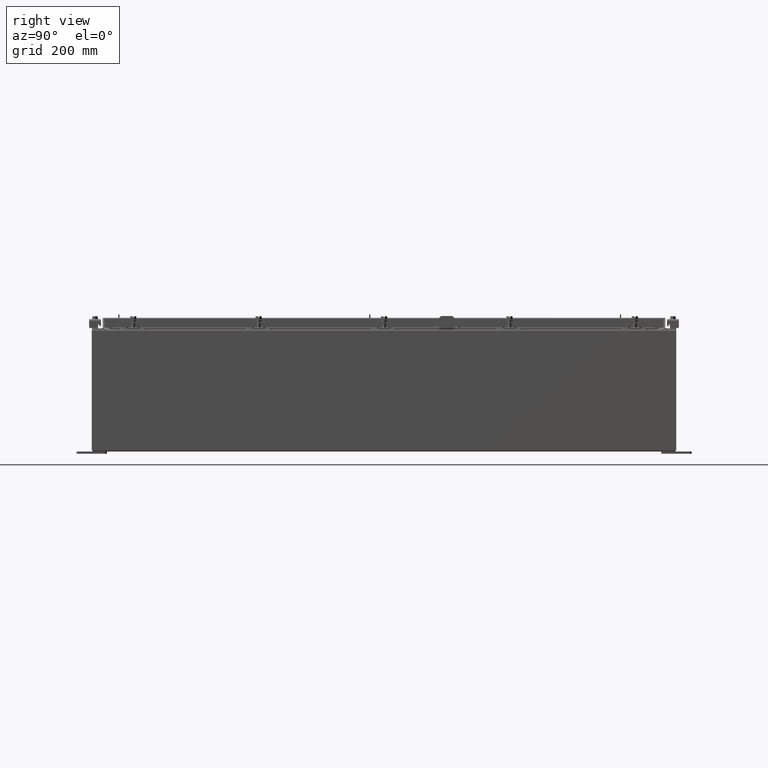
[diagram: clean part render]
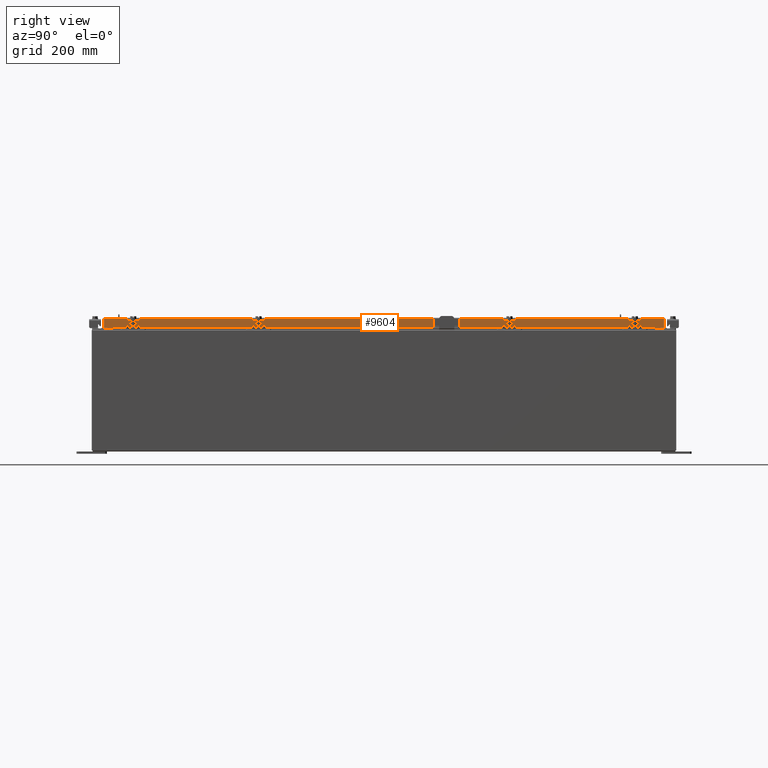
[diagram: same view with one face highlighted and labeled with its STEP entity id]
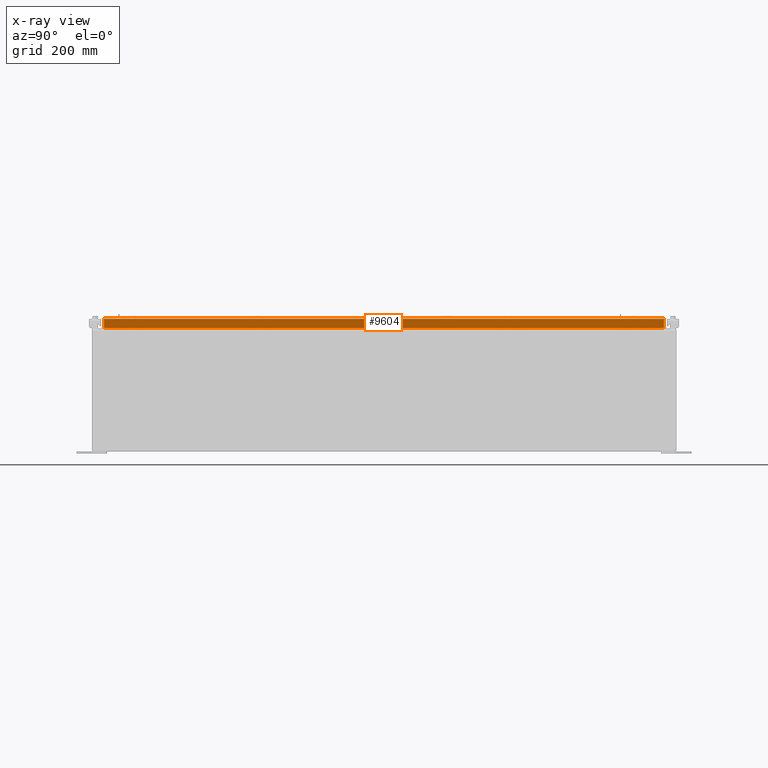
[diagram: x-ray of the same camera — body ghosted, the highlighted face saturated]
A machine part, right view. The second image highlights one B-rep face of the part: STEP entity #9604.
The next image is the same camera in x-ray: the body ghosted, the highlighted face saturated — about 0% of this face is hidden behind the body in this view.
In plain terms, the highlighted planar face has unit normal (1, 0, 0).
Its self-contained STEP definition (entity closure, byte-faithful):
#224 = ORIENTED_EDGE ( 'NONE', *, *, #17596, .F. ) ;
#343 = EDGE_CURVE ( 'NONE', #21445, #2630, #20686, .T. ) ;
#785 = CARTESIAN_POINT ( 'NONE',  ( 14.07799999999999900, 4.149702416982216500E-018, -0.08770000000000115200 ) ) ;
#1164 = CARTESIAN_POINT ( 'NONE',  ( 14.07799999999999900, 0.0000000000000000000, 3.994501956836086200E-014 ) ) ;
#2500 = VERTEX_POINT ( 'NONE', #5591 ) ;
#2630 = VERTEX_POINT ( 'NONE', #13372 ) ;
#2797 = ORIENTED_EDGE ( 'NONE', *, *, #343, .T. ) ;
#3774 = VECTOR ( 'NONE', #18931, 39.37007874015748100 ) ;
#4299 = DIRECTION ( 'NONE',  ( 0.0000000000000000000, -1.000000000000000000, 0.0000000000000000000 ) ) ;
#4976 = DIRECTION ( 'NONE',  ( 1.000000000000000000, 0.0000000000000000000, 2.818880942772360100E-015 ) ) ;
#5591 = CARTESIAN_POINT ( 'NONE',  ( 14.07799999999999900, -23.00515786437627200, -0.08770000000000224800 ) ) ;
#6147 = EDGE_CURVE ( 'NONE', #21445, #21310, #19562, .T. ) ;
#7078 = VECTOR ( 'NONE', #21745, 39.37007874015748100 ) ;
#7211 = DIRECTION ( 'NONE',  ( -2.818880942772360100E-015, -6.982962677686265900E-015, 1.000000000000000000 ) ) ;
#8622 = LINE ( 'NONE', #10353, #13063 ) ;
#8812 = ORIENTED_EDGE ( 'NONE', *, *, #16364, .F. ) ;
#9398 = CARTESIAN_POINT ( 'NONE',  ( 14.07799999999999900, -23.00515786437627200, -0.07469999999999978000 ) ) ;
#9604 = ADVANCED_FACE ( 'NONE', ( #15589 ), #20131, .T. ) ;
#9929 = VECTOR ( 'NONE', #7211, 39.37007874015748100 ) ;
#10353 = CARTESIAN_POINT ( 'NONE',  ( 14.07800000000000300, -23.09400000000000100, -0.8499999999999996400 ) ) ;
#10795 = ORIENTED_EDGE ( 'NONE', *, *, #19957, .F. ) ;
#11488 = VERTEX_POINT ( 'NONE', #18641 ) ;
#13063 = VECTOR ( 'NONE', #21790, 39.37007874015748100 ) ;
#13372 = CARTESIAN_POINT ( 'NONE',  ( 14.07799999999999900, 23.00515786437626200, -0.08770000000000115200 ) ) ;
#13526 = VECTOR ( 'NONE', #24593, 39.37007874015748100 ) ;
#13694 = ORIENTED_EDGE ( 'NONE', *, *, #6147, .F. ) ;
#13797 = EDGE_LOOP ( 'NONE', ( #8812, #10795, #224, #13694, #2797, #15445 ) ) ;
#13970 = EDGE_CURVE ( 'NONE', #2630, #2500, #22868, .T. ) ;
#14050 = CARTESIAN_POINT ( 'NONE',  ( 14.07799999999999100, 22.25515786437627200, -0.8500000000000020900 ) ) ;
#15445 = ORIENTED_EDGE ( 'NONE', *, *, #13970, .T. ) ;
#15589 = FACE_OUTER_BOUND ( 'NONE', #13797, .T. ) ;
#16163 = LINE ( 'NONE', #19537, #20654 ) ;
#16364 = EDGE_CURVE ( 'NONE', #11488, #2500, #24231, .T. ) ;
#17596 = EDGE_CURVE ( 'NONE', #21310, #18886, #16163, .T. ) ;
#17985 = AXIS2_PLACEMENT_3D ( 'NONE', #1164, #4976, #18295 ) ;
#18295 = DIRECTION ( 'NONE',  ( 2.818880942772360100E-015, 0.0000000000000000000, -1.000000000000000000 ) ) ;
#18545 = CARTESIAN_POINT ( 'NONE',  ( 14.07800000000000300, -23.09400000000000100, -0.8499999999999996400 ) ) ;
#18641 = CARTESIAN_POINT ( 'NONE',  ( 14.07800000000000300, -23.00515786437626900, -0.8499999999999996400 ) ) ;
#18886 = VERTEX_POINT ( 'NONE', #23585 ) ;
#18931 = DIRECTION ( 'NONE',  ( 0.0000000000000000000, -1.000000000000000000, 0.0000000000000000000 ) ) ;
#19537 = CARTESIAN_POINT ( 'NONE',  ( 14.07799999999999100, 22.25515786437627200, -0.8500000000000020900 ) ) ;
#19562 = LINE ( 'NONE', #18545, #3774 ) ;
#19957 = EDGE_CURVE ( 'NONE', #18886, #11488, #8622, .T. ) ;
#20131 = PLANE ( 'NONE',  #17985 ) ;
#20654 = VECTOR ( 'NONE', #4299, 39.37007874015748100 ) ;
#20686 = LINE ( 'NONE', #22519, #9929 ) ;
#21310 = VERTEX_POINT ( 'NONE', #14050 ) ;
#21445 = VERTEX_POINT ( 'NONE', #23932 ) ;
#21745 = DIRECTION ( 'NONE',  ( 1.333810383284160400E-031, -1.000000000000000000, -4.731701729738051400E-017 ) ) ;
#21790 = DIRECTION ( 'NONE',  ( 0.0000000000000000000, -1.000000000000000000, 0.0000000000000000000 ) ) ;
#22519 = CARTESIAN_POINT ( 'NONE',  ( 14.07799999999999900, 23.00515786437626900, 2.005891783295810500E-013 ) ) ;
#22868 = LINE ( 'NONE', #785, #7078 ) ;
#23585 = CARTESIAN_POINT ( 'NONE',  ( 14.07799999999999100, -22.25515786437626200, -0.8500000000000020900 ) ) ;
#23932 = CARTESIAN_POINT ( 'NONE',  ( 14.07800000000000300, 23.00515786437627200, -0.8499999999999996400 ) ) ;
#24231 = LINE ( 'NONE', #9398, #13526 ) ;
#24593 = DIRECTION ( 'NONE',  ( -2.818880942772360100E-015, -6.982962677686265900E-015, 1.000000000000000000 ) ) ;